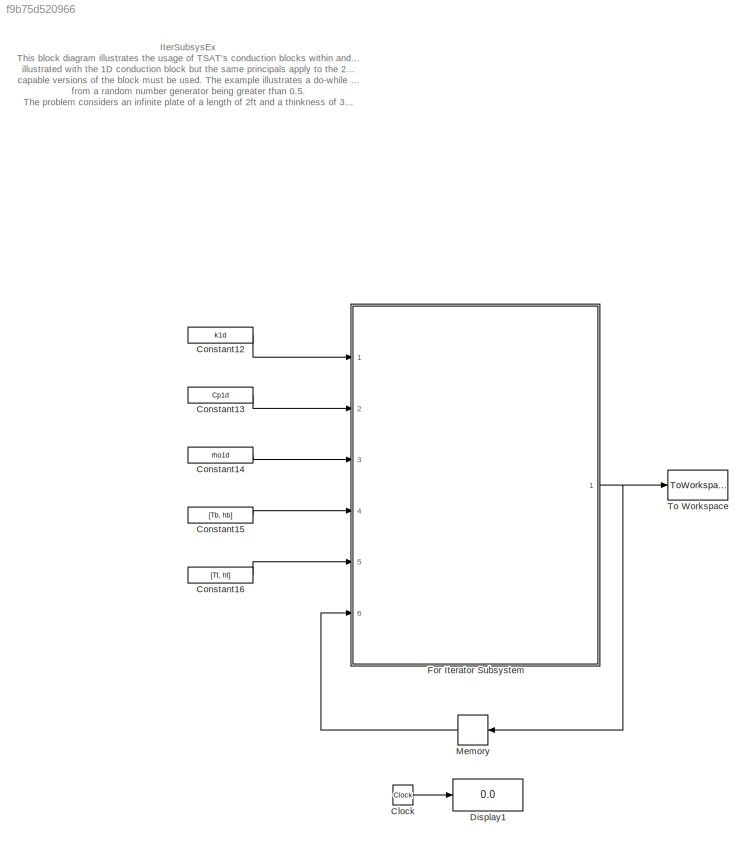
MODEL slx_f9b75d520966
KIND model
CONFIG AbsTol = auto
CONFIG FixedStep = dt
CONFIG MaxStep = auto
CONFIG MinStep = auto
CONFIG RelTol = 1e-3
CONFIG SampleTimeConstraint = Unconstrained
CONFIG Solver = FixedStepDiscrete
CONFIG SolverMode = Auto
CONFIG SolverName = FixedStepDiscrete
CONFIG StartTime = 0.0
CONFIG StopTime = tsim
BLOCK [Clock] Clock
BLOCK [Constant] Constant12
  Value = k1d
BLOCK [Constant] Constant13
  Value = Cp1d
BLOCK [Constant] Constant14
  Value = rho1d
BLOCK [Constant] Constant15
  Value = [Tb, hb]
BLOCK [Constant] Constant16
  Value = [Tt, ht]
BLOCK [Display] Display1
  Decimation = 1
  Ports = [1]
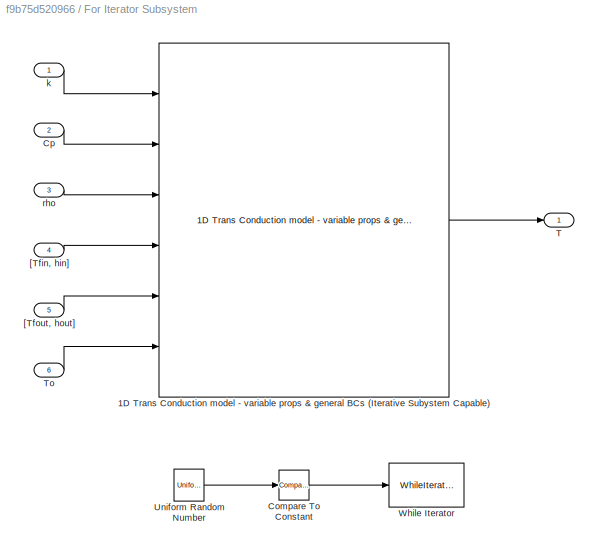
BLOCK [SubSystem] For Iterator Subsystem
  Ports = [6, 1]
  RequestExecContextInheritance = off
  TreatAsAtomicUnit = on
BLOCK [Reference] For Iterator Subsystem/1D Trans Conduction model - variable props & general BCs (Iterative Subystem Capable)  REF=lib_Conduction_HeatX1DVarPropsAndGenBCs_IterSubsysCapable/1D Trans Conduction model - variable props & general BCs (Iterative Subystem Capable)
  BN_M = double(gcb)
  Ports = [6, 1]
  SourceBlock = lib_Conduction_HeatX1DVarPropsAndGenBCs_IterSubsysCapable/1D Trans Conduction model - variable props & general BCs (Iterative Subystem Capable)
  SourceType = T-MATS: 1-D Trans Conduction Model - Variable Props + Generic BCs Block
  T0_M = T01d
  a_M = off
  condin_M = off
  condout_M = off
  convin_M = on
  convout_M = on
  dt_M = dt
  radin_M = off
  radout_M = off
  x_M = y0
BLOCK [Reference] For Iterator Subsystem/Compare To Constant  REF=simulink/Logic and Bit
Operations/Compare
To Constant
  OutDataTypeStr = boolean
  Ports = [1, 1]
  SourceBlock = simulink/Logic and Bit\nOperations/Compare\nTo Constant
  SourceType = Compare To Constant
  ZeroCross = on
  const = 0.5
  relop = <
BLOCK [Inport] For Iterator Subsystem/Cp
  IconDisplay = Port number
  Port = 2
BLOCK [Outport] For Iterator Subsystem/T
  IconDisplay = Port number
BLOCK [Inport] For Iterator Subsystem/To
  IconDisplay = Port number
  Port = 6
BLOCK [UniformRandomNumber] For Iterator Subsystem/Uniform Random Number
  Minimum = 0
BLOCK [WhileIterator] For Iterator Subsystem/While Iterator
  MaxIters = 100
  Ports = [1]
  WhileBlockType = do-while
BLOCK [Inport] For Iterator Subsystem/[Tfin, hin]
  IconDisplay = Port number
  Port = 4
BLOCK [Inport] For Iterator Subsystem/[Tfout, hout]
  IconDisplay = Port number
  Port = 5
BLOCK [Inport] For Iterator Subsystem/k
  IconDisplay = Port number
BLOCK [Inport] For Iterator Subsystem/rho
  IconDisplay = Port number
  Port = 3
BLOCK [Memory] Memory
  X0 = T01d
BLOCK [ToWorkspace] To Workspace
  FixptAsFi = on
  MaxDataPoints = inf
  Ports = [1]
  SampleTime = -1
  Save2DSignal = 3-D array (concatenate along third dimension)
  SaveFormat = Timeseries
  VariableName = T1d
ANNOTATION (root): IterSubsysEx This block diagram illustrates the usage of TSAT's conduction blocks within and iterative subsystem. The example is illustrated with the 1D conduction block but the same principals apply to the 2D conduction blocks. The iterative subsystem capable versions of the block must be used. The example illustrates a do-while loop with condition based on the output from a random number generat...<+640ch>
LINE Clock:1 -> Display1:1
LINE Constant12:1 -> For Iterator Subsystem:1
LINE Constant13:1 -> For Iterator Subsystem:2
LINE Constant14:1 -> For Iterator Subsystem:3
LINE Constant15:1 -> For Iterator Subsystem:4
LINE Constant16:1 -> For Iterator Subsystem:5
LINE For Iterator Subsystem/1D Trans Conduction model - variable props & general BCs (Iterative Subystem Capable):1 -> For Iterator Subsystem/T:1
LINE For Iterator Subsystem/Compare To Constant:1 -> For Iterator Subsystem/While Iterator:1
LINE For Iterator Subsystem/Cp:1 -> For Iterator Subsystem/1D Trans Conduction model - variable props & general BCs (Iterative Subystem Capable):2
LINE For Iterator Subsystem/To:1 -> For Iterator Subsystem/1D Trans Conduction model - variable props & general BCs (Iterative Subystem Capable):6
LINE For Iterator Subsystem/Uniform Random Number:1 -> For Iterator Subsystem/Compare To Constant:1
LINE For Iterator Subsystem/[Tfin, hin]:1 -> For Iterator Subsystem/1D Trans Conduction model - variable props & general BCs (Iterative Subystem Capable):4
LINE For Iterator Subsystem/[Tfout, hout]:1 -> For Iterator Subsystem/1D Trans Conduction model - variable props & general BCs (Iterative Subystem Capable):5
LINE For Iterator Subsystem/k:1 -> For Iterator Subsystem/1D Trans Conduction model - variable props & general BCs (Iterative Subystem Capable):1
LINE For Iterator Subsystem/rho:1 -> For Iterator Subsystem/1D Trans Conduction model - variable props & general BCs (Iterative Subystem Capable):3
NET For Iterator Subsystem:1 -> Memory:1, To Workspace:1
LINE Memory:1 -> For Iterator Subsystem:6
note: NET lines group one-source signal fan-out (src -> all destinations, sorted); 1:1 wires keep LINE
